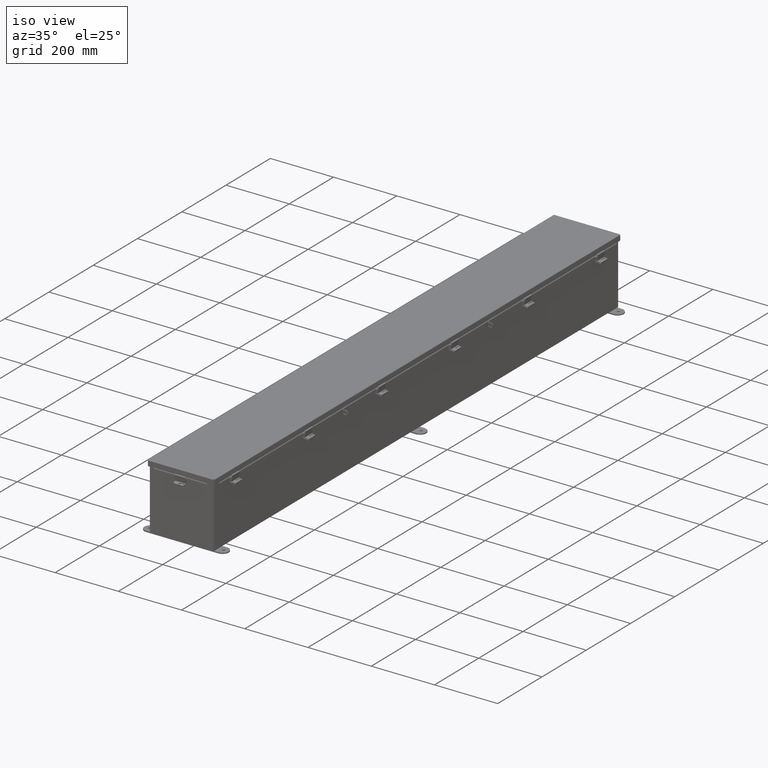
[diagram: clean part render]
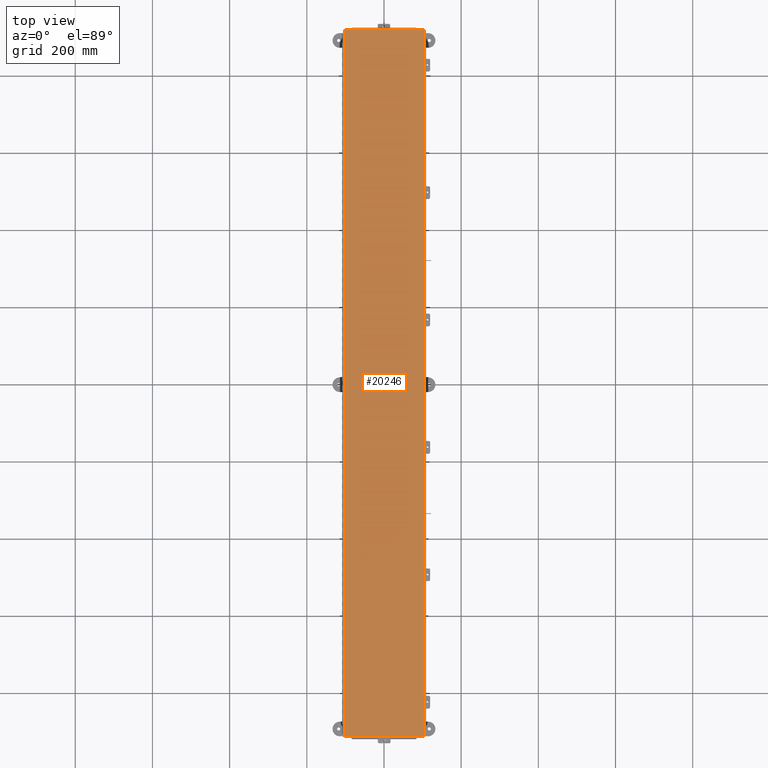
[diagram: tour spotlight — one face highlighted and labeled with its STEP entity id]
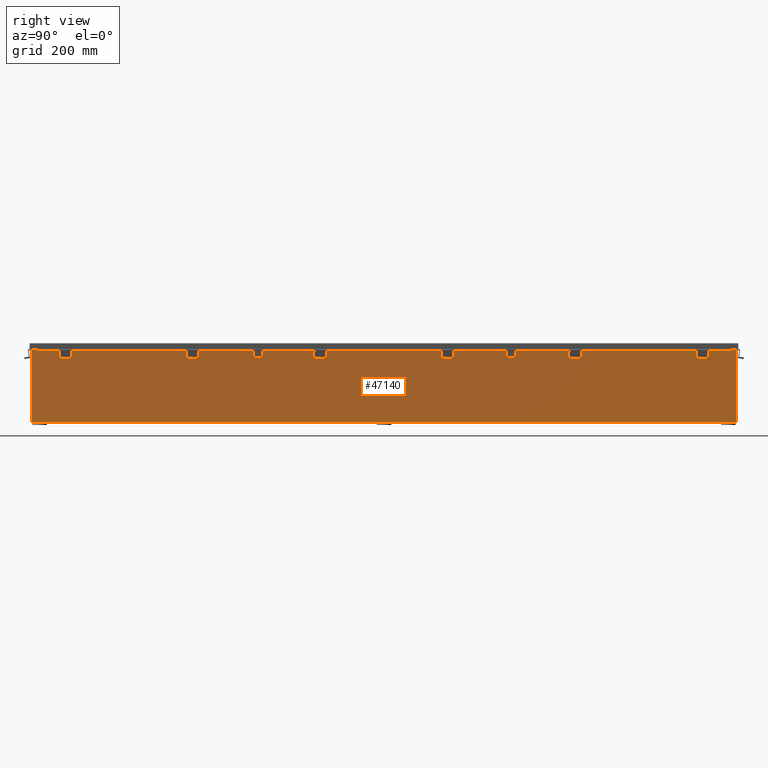
[diagram: tour spotlight — one face highlighted and labeled with its STEP entity id]
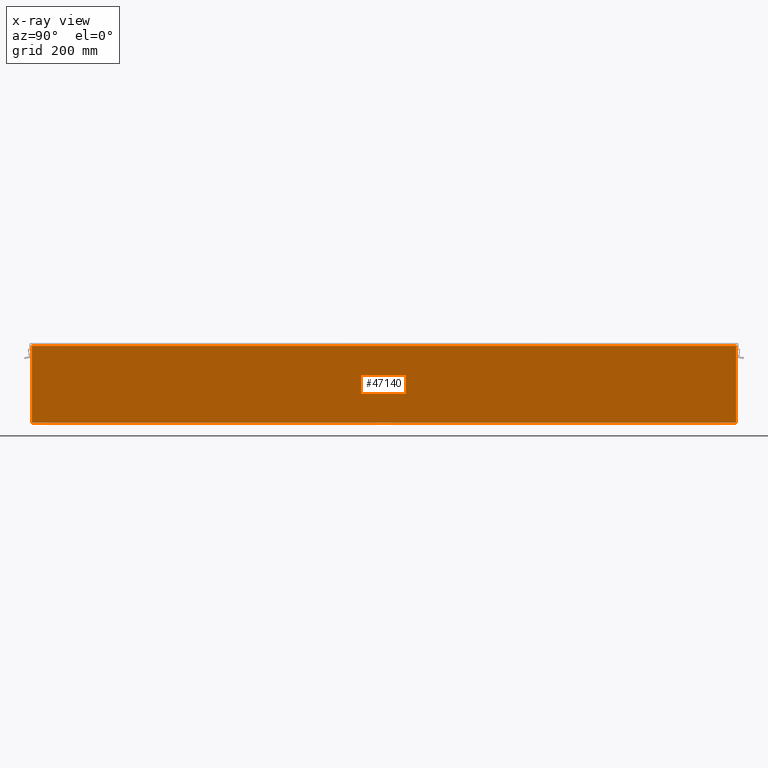
[diagram: x-ray of the same camera — body ghosted, this tour face saturated]
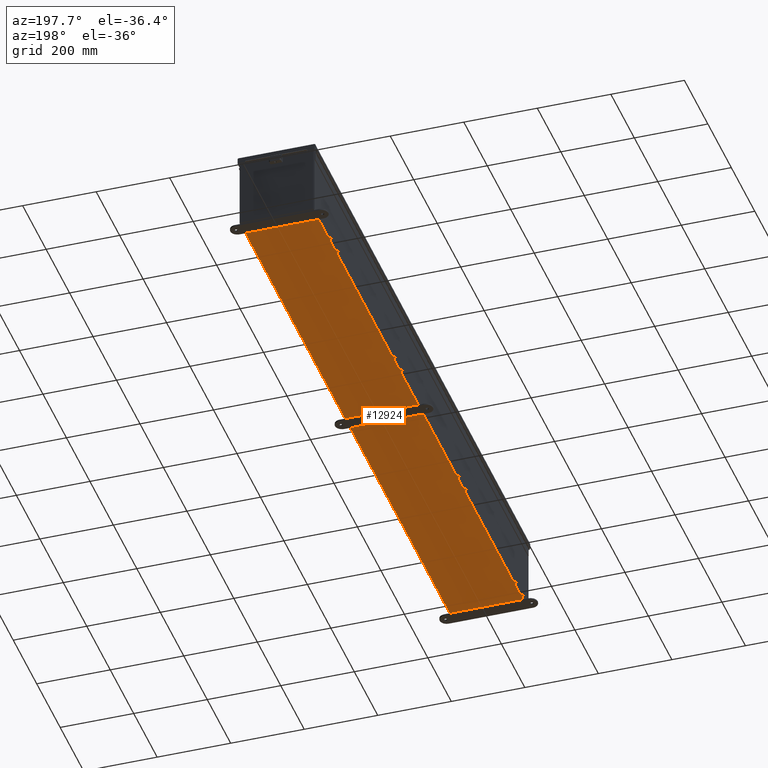
[diagram: tour spotlight — one face highlighted and labeled with its STEP entity id]
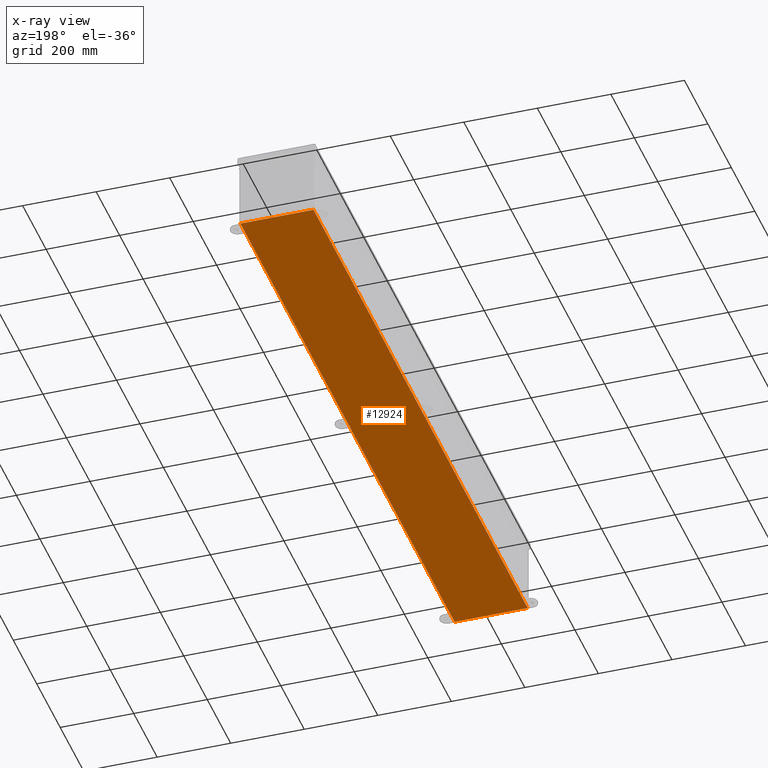
[diagram: x-ray of the same camera — body ghosted, this tour face saturated]
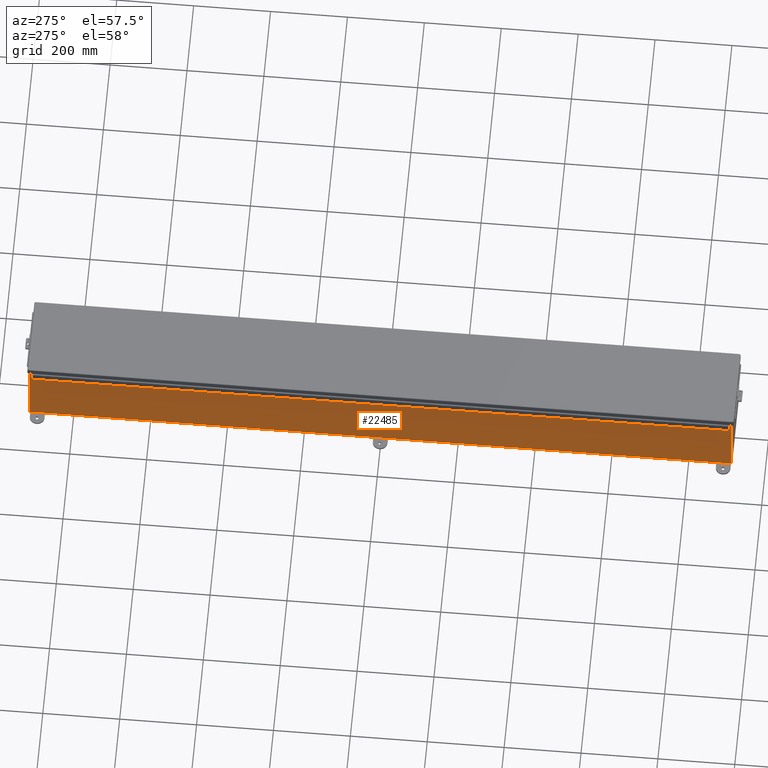
[diagram: tour spotlight — one face highlighted and labeled with its STEP entity id]
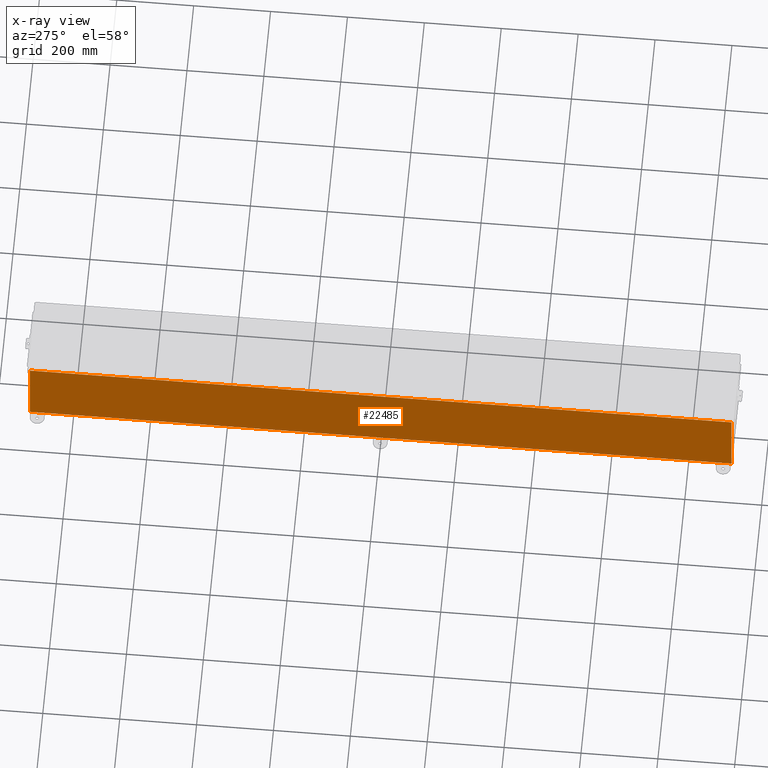
[diagram: x-ray of the same camera — body ghosted, this tour face saturated]
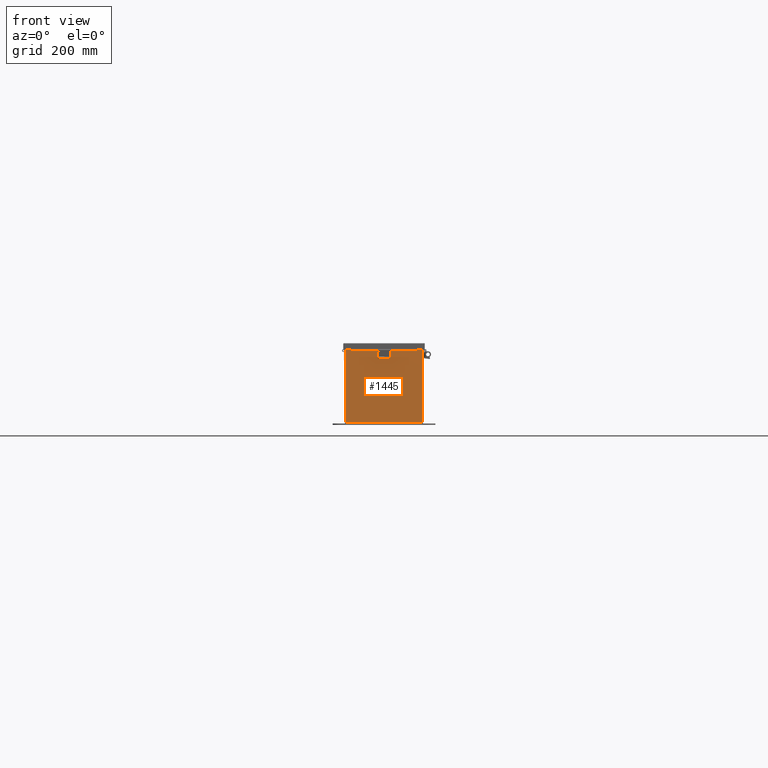
[diagram: tour spotlight — one face highlighted and labeled with its STEP entity id]
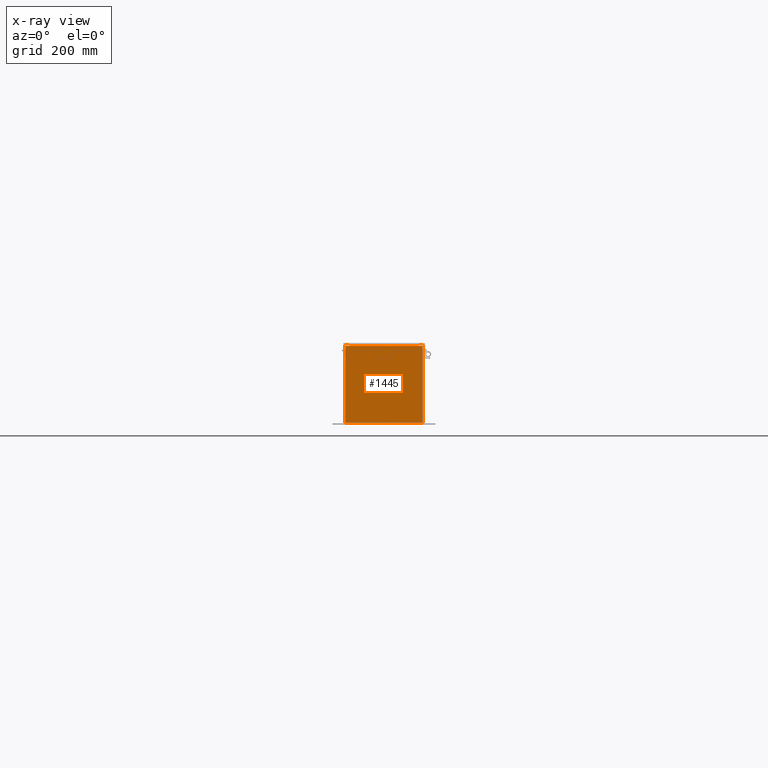
[diagram: x-ray of the same camera — body ghosted, this tour face saturated]
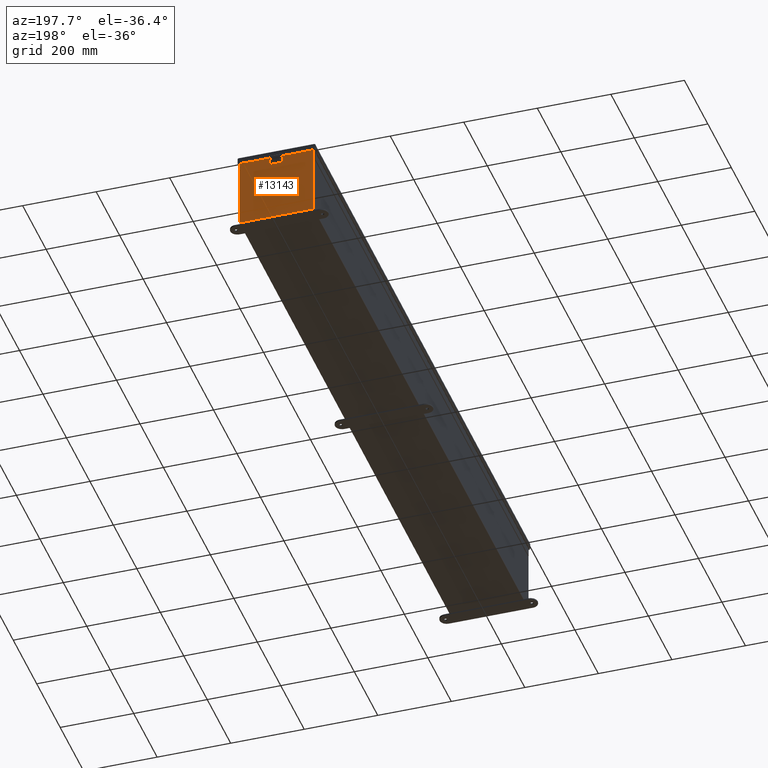
[diagram: tour spotlight — one face highlighted and labeled with its STEP entity id]
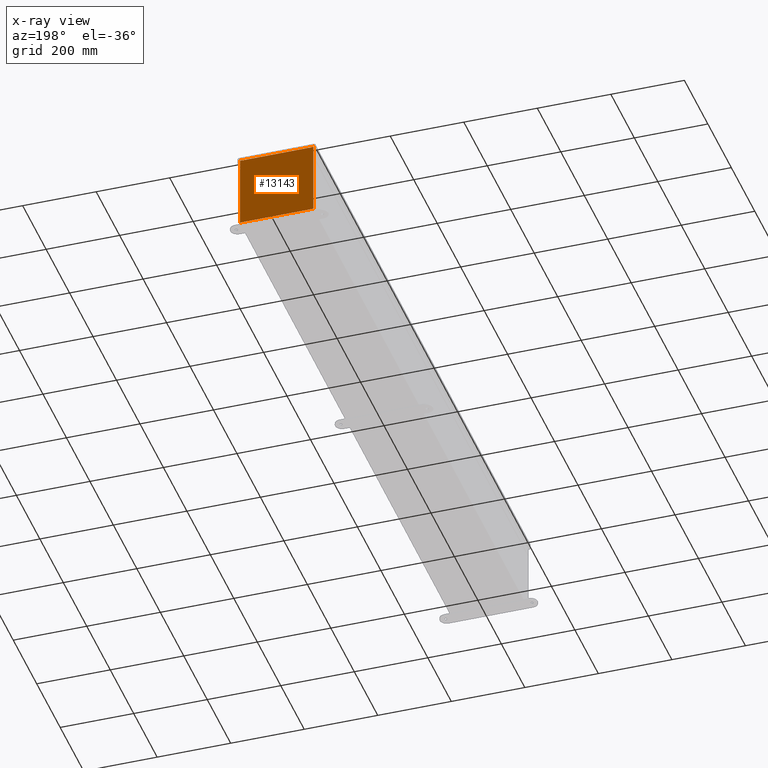
[diagram: x-ray of the same camera — body ghosted, this tour face saturated]
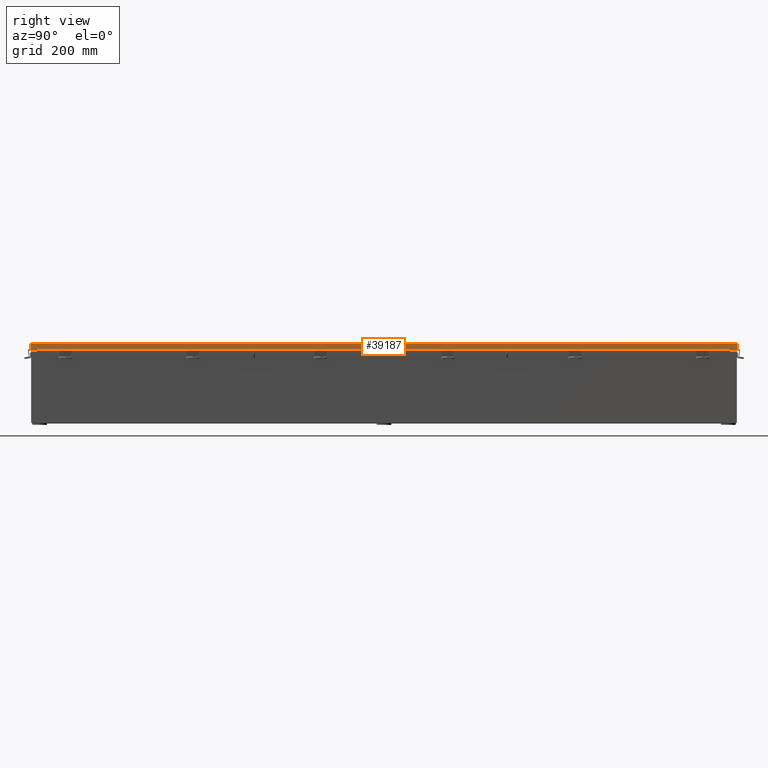
[diagram: tour spotlight — one face highlighted and labeled with its STEP entity id]
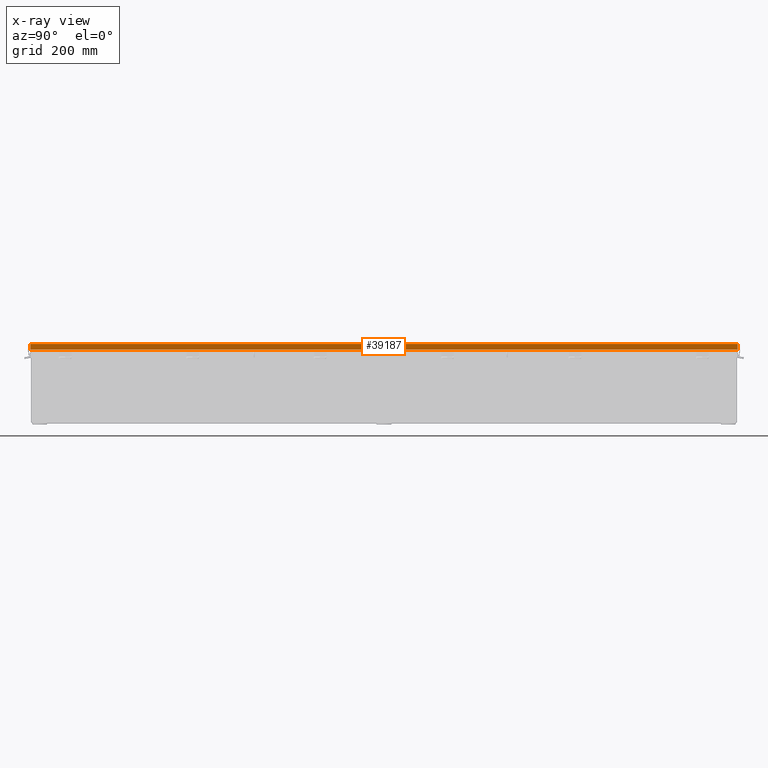
[diagram: x-ray of the same camera — body ghosted, this tour face saturated]
A machine part: a face-by-face anatomy tour. The part has 1943 B-rep faces; the first image is the clean iso view, then the 7 largest visible faces are spotlighted one at a time (largest first), each with its STEP entity span.

Face 1 — top view, entity #20246. In plain terms, the highlighted planar face has unit normal (0, -0, 1).
Definition (entity closure, byte-faithful):
#1983 = ORIENTED_EDGE ( 'NONE', *, *, #19284, .T. ) ;
#3235 = VECTOR ( 'NONE', #7517, 39.37007874015748100 ) ;
#3602 = CARTESIAN_POINT ( 'NONE',  ( 4.074478932188148100, -36.06855000000000900, -0.07470000000000015500 ) ) ;
#4507 = ORIENTED_EDGE ( 'NONE', *, *, #14492, .T. ) ;
#7517 = DIRECTION ( 'NONE',  ( -1.000000000000000000, -1.890815658827583500E-028, -0.0000000000000000000 ) ) ;
#7848 = CARTESIAN_POINT ( 'NONE',  ( -4.068550000000025900, 36.06854999999999500, -0.07470000000000015500 ) ) ;
#8375 = VECTOR ( 'NONE', #10351, 39.37007874015748100 ) ;
#10351 = DIRECTION ( 'NONE',  ( -1.890322620761828000E-028, -1.000000000000000000, 3.771741203087962700E-030 ) ) ;
#11039 = DIRECTION ( 'NONE',  ( 1.890322620761828000E-028, 1.000000000000000000, -3.771741203087962700E-030 ) ) ;
#11086 = ORIENTED_EDGE ( 'NONE', *, *, #16879, .T. ) ;
#11556 = VECTOR ( 'NONE', #45175, 39.37007874015748100 ) ;
#12917 = VERTEX_POINT ( 'NONE', #7848 ) ;
#14492 = EDGE_CURVE ( 'NONE', #12917, #19630, #21863, .T. ) ;
#16879 = EDGE_CURVE ( 'NONE', #19630, #33758, #18685, .T. ) ;
#18158 = DIRECTION ( 'NONE',  ( -7.271503942115330600E-058, 3.845696912952417800E-030, -1.000000000000000000 ) ) ;
#18685 = LINE ( 'NONE', #25841, #8375 ) ;
#19284 = EDGE_CURVE ( 'NONE', #33758, #41092, #45910, .T. ) ;
#19500 = LINE ( 'NONE', #49920, #35415 ) ;
#19630 = VERTEX_POINT ( 'NONE', #33739 ) ;
#19743 = EDGE_CURVE ( 'NONE', #41092, #12917, #19500, .T. ) ;
#20246 = ADVANCED_FACE ( 'NONE', ( #21219 ), #33712, .T. ) ;
#21219 = FACE_OUTER_BOUND ( 'NONE', #37318, .T. ) ;
#21863 = LINE ( 'NONE', #37357, #11556 ) ;
#22280 = CARTESIAN_POINT ( 'NONE',  ( -4.068550000000025900, -36.06855000000000900, -0.07470000000000125200 ) ) ;
#25722 = CARTESIAN_POINT ( 'NONE',  ( 4.068550000000014300, -36.06855000000000900, -0.07470000000000015500 ) ) ;
#25841 = CARTESIAN_POINT ( 'NONE',  ( 4.068550000000013400, 36.07447893218812900, -0.07470000000000015500 ) ) ;
#30137 = ORIENTED_EDGE ( 'NONE', *, *, #19743, .T. ) ;
#33712 = PLANE ( 'NONE',  #46477 ) ;
#33739 = CARTESIAN_POINT ( 'NONE',  ( 4.068550000000013400, 36.06854999999998800, -0.07470000000000015500 ) ) ;
#33758 = VERTEX_POINT ( 'NONE', #25722 ) ;
#35415 = VECTOR ( 'NONE', #11039, 39.37007874015748100 ) ;
#37318 = EDGE_LOOP ( 'NONE', ( #4507, #11086, #1983, #30137 ) ) ;
#37357 = CARTESIAN_POINT ( 'NONE',  ( -4.074478932188159600, 36.06854999999999500, -0.07470000000000015500 ) ) ;
#41092 = VERTEX_POINT ( 'NONE', #22280 ) ;
#41528 = CARTESIAN_POINT ( 'NONE',  ( 0.0000000000000000000, 0.0000000000000000000, -0.07470000000000015500 ) ) ;
#45175 = DIRECTION ( 'NONE',  ( 1.000000000000000000, 1.890815658827583500E-028, -0.0000000000000000000 ) ) ;
#45451 = DIRECTION ( 'NONE',  ( -1.000000000000000000, -1.890815658827583700E-028, 0.0000000000000000000 ) ) ;
#45910 = LINE ( 'NONE', #3602, #3235 ) ;
#46477 = AXIS2_PLACEMENT_3D ( 'NONE', #41528, #18158, #45451 ) ;
#49920 = CARTESIAN_POINT ( 'NONE',  ( -4.068550000000025900, -36.07447893218814300, -0.07470000000000125200 ) ) ;

Face 2 — right view, entity #47140. An x-ray twin of the same camera follows (body ghosted, this face saturated) — the face is partly hidden behind the body. In plain terms, the highlighted planar face has unit normal (-1, 0, 0).
Definition (entity closure, byte-faithful):
#473 = DIRECTION ( 'NONE',  ( -7.938364978030872700E-032, -1.000000000000000000, -2.281273637518070200E-017 ) ) ;
#1092 = VERTEX_POINT ( 'NONE', #19491 ) ;
#1816 = CARTESIAN_POINT ( 'NONE',  ( 4.000000000000027500, 35.92529999999997900, 7.837599999999999200 ) ) ;
#3075 = CARTESIAN_POINT ( 'NONE',  ( 4.000000000000001800, 0.0000000000000000000, -1.417999849211356600E-014 ) ) ;
#3430 = EDGE_CURVE ( 'NONE', #30369, #40277, #9976, .T. ) ;
#5814 = EDGE_CURVE ( 'NONE', #30369, #36901, #47027, .T. ) ;
#6041 = EDGE_CURVE ( 'NONE', #40277, #1092, #17681, .T. ) ;
#6814 = PLANE ( 'NONE',  #23424 ) ;
#6986 = DIRECTION ( 'NONE',  ( 3.479795166820705900E-015, 0.0000000000000000000, 1.000000000000000000 ) ) ;
#7461 = DIRECTION ( 'NONE',  ( -3.479795166820706300E-015, 0.0000000000000000000, -1.000000000000000000 ) ) ;
#9976 = LINE ( 'NONE', #41514, #29471 ) ;
#15657 = ORIENTED_EDGE ( 'NONE', *, *, #22106, .T. ) ;
#15885 = VECTOR ( 'NONE', #473, 39.37007874015748100 ) ;
#17681 = LINE ( 'NONE', #21304, #25607 ) ;
#18315 = DIRECTION ( 'NONE',  ( 3.479795166820706300E-015, -5.567672266913130300E-016, 1.000000000000000000 ) ) ;
#19491 = CARTESIAN_POINT ( 'NONE',  ( 4.000000000000029300, -35.92530000000000000, 7.837599999999999200 ) ) ;
#20265 = FACE_OUTER_BOUND ( 'NONE', #44298, .T. ) ;
#20519 = CARTESIAN_POINT ( 'NONE',  ( 4.000000000000001800, -35.92530000000000700, 0.01300000000000066200 ) ) ;
#21304 = CARTESIAN_POINT ( 'NONE',  ( 4.000000000000027500, 35.92529999999999300, 7.837599999999999200 ) ) ;
#22106 = EDGE_CURVE ( 'NONE', #1092, #36901, #38181, .T. ) ;
#23424 = AXIS2_PLACEMENT_3D ( 'NONE', #3075, #30297, #6986 ) ;
#25607 = VECTOR ( 'NONE', #33137, 39.37007874015748100 ) ;
#29001 = VECTOR ( 'NONE', #7461, 39.37007874015748100 ) ;
#29471 = VECTOR ( 'NONE', #18315, 39.37007874015748100 ) ;
#30297 = DIRECTION ( 'NONE',  ( -1.000000000000000000, 0.0000000000000000000, 3.479795166820705900E-015 ) ) ;
#30369 = VERTEX_POINT ( 'NONE', #40642 ) ;
#30776 = CARTESIAN_POINT ( 'NONE',  ( 4.000000000000001800, -35.92530000000000000, -1.417999849211356600E-014 ) ) ;
#33137 = DIRECTION ( 'NONE',  ( -0.0000000000000000000, -1.000000000000000000, -0.0000000000000000000 ) ) ;
#36901 = VERTEX_POINT ( 'NONE', #20519 ) ;
#38181 = LINE ( 'NONE', #30776, #29001 ) ;
#40277 = VERTEX_POINT ( 'NONE', #1816 ) ;
#40642 = CARTESIAN_POINT ( 'NONE',  ( 4.000000000000001800, 35.92530000000000000, 0.01300000000000148100 ) ) ;
#41078 = ORIENTED_EDGE ( 'NONE', *, *, #5814, .F. ) ;
#41514 = CARTESIAN_POINT ( 'NONE',  ( 4.000000000000001800, 35.92530000000000000, 5.822251036496960700E-015 ) ) ;
#44298 = EDGE_LOOP ( 'NONE', ( #45822, #15657, #41078, #48843 ) ) ;
#45822 = ORIENTED_EDGE ( 'NONE', *, *, #6041, .T. ) ;
#47027 = LINE ( 'NONE', #47145, #15885 ) ;
#47140 = ADVANCED_FACE ( 'NONE', ( #20265 ), #6814, .F. ) ;
#47145 = CARTESIAN_POINT ( 'NONE',  ( 4.000000000000001800, -35.92530000000000000, 0.01299999999999984300 ) ) ;
#48843 = ORIENTED_EDGE ( 'NONE', *, *, #3430, .T. ) ;

Face 3 — auxiliary view, entity #12924. An x-ray twin of the same camera follows (body ghosted, this face saturated) — the face is partly hidden behind the body. In plain terms, the highlighted planar face has unit normal (0, 0, -1).
Definition (entity closure, byte-faithful):
#197 = DIRECTION ( 'NONE',  ( -1.000000000000000000, 0.0000000000000000000, -0.0000000000000000000 ) ) ;
#2967 = VECTOR ( 'NONE', #22045, 39.37007874015748100 ) ;
#3238 = VERTEX_POINT ( 'NONE', #21034 ) ;
#3945 = CARTESIAN_POINT ( 'NONE',  ( 0.0000000000000000000, 0.0000000000000000000, -0.07470000000000000300 ) ) ;
#4677 = ORIENTED_EDGE ( 'NONE', *, *, #46789, .T. ) ;
#7417 = CARTESIAN_POINT ( 'NONE',  ( -3.999999999999997800, -35.92530000000000000, -0.07470000000000000300 ) ) ;
#7502 = CARTESIAN_POINT ( 'NONE',  ( 3.912300000000001900, -35.92530000000000700, -0.07470000000000000300 ) ) ;
#9097 = DIRECTION ( 'NONE',  ( -0.0000000000000000000, -1.000000000000000000, -0.0000000000000000000 ) ) ;
#10206 = VERTEX_POINT ( 'NONE', #7502 ) ;
#12924 = ADVANCED_FACE ( 'NONE', ( #43458 ), #19559, .T. ) ;
#13294 = LINE ( 'NONE', #41372, #2967 ) ;
#15116 = EDGE_CURVE ( 'NONE', #16101, #3238, #13294, .T. ) ;
#15295 = ORIENTED_EDGE ( 'NONE', *, *, #44606, .T. ) ;
#16101 = VERTEX_POINT ( 'NONE', #25063 ) ;
#17877 = LINE ( 'NONE', #23880, #36242 ) ;
#19099 = VERTEX_POINT ( 'NONE', #37686 ) ;
#19559 = PLANE ( 'NONE',  #19993 ) ;
#19769 = EDGE_LOOP ( 'NONE', ( #22138, #15295, #38061, #4677 ) ) ;
#19993 = AXIS2_PLACEMENT_3D ( 'NONE', #3945, #23487, #197 ) ;
#21034 = CARTESIAN_POINT ( 'NONE',  ( -3.912299999999997400, 35.92530000000000000, -0.07470000000000000300 ) ) ;
#21046 = LINE ( 'NONE', #7417, #22256 ) ;
#22045 = DIRECTION ( 'NONE',  ( -1.000000000000000000, -0.0000000000000000000, -0.0000000000000000000 ) ) ;
#22138 = ORIENTED_EDGE ( 'NONE', *, *, #15116, .F. ) ;
#22256 = VECTOR ( 'NONE', #42357, 39.37007874015748100 ) ;
#23487 = DIRECTION ( 'NONE',  ( 0.0000000000000000000, 0.0000000000000000000, -1.000000000000000000 ) ) ;
#23880 = CARTESIAN_POINT ( 'NONE',  ( -3.912299999999997400, -35.92530000000000700, -0.07470000000000076600 ) ) ;
#25063 = CARTESIAN_POINT ( 'NONE',  ( 3.912300000000001900, 35.92530000000000000, -0.07469999999999912800 ) ) ;
#32062 = VECTOR ( 'NONE', #9097, 39.37007874015748100 ) ;
#32423 = CARTESIAN_POINT ( 'NONE',  ( 3.912300000000001900, 35.92530000000000700, -0.07469999999999912800 ) ) ;
#36242 = VECTOR ( 'NONE', #47273, 39.37007874015748100 ) ;
#37686 = CARTESIAN_POINT ( 'NONE',  ( -3.912299999999997400, -35.92530000000000000, -0.07470000000000076600 ) ) ;
#38061 = ORIENTED_EDGE ( 'NONE', *, *, #44375, .F. ) ;
#41372 = CARTESIAN_POINT ( 'NONE',  ( -3.999999999999997800, 35.92530000000000000, -0.07470000000000000300 ) ) ;
#42357 = DIRECTION ( 'NONE',  ( 1.000000000000000000, 0.0000000000000000000, 0.0000000000000000000 ) ) ;
#43458 = FACE_OUTER_BOUND ( 'NONE', #19769, .T. ) ;
#43667 = LINE ( 'NONE', #32423, #32062 ) ;
#44375 = EDGE_CURVE ( 'NONE', #19099, #10206, #21046, .T. ) ;
#44606 = EDGE_CURVE ( 'NONE', #16101, #10206, #43667, .T. ) ;
#46789 = EDGE_CURVE ( 'NONE', #19099, #3238, #17877, .T. ) ;
#47273 = DIRECTION ( 'NONE',  ( -0.0000000000000000000, 1.000000000000000000, -0.0000000000000000000 ) ) ;

Face 4 — auxiliary view, entity #22485. An x-ray twin of the same camera follows (body ghosted, this face saturated) — the face is partly hidden behind the body. In plain terms, the highlighted planar face has unit normal (1, 0, 0).
Definition (entity closure, byte-faithful):
#311 = ORIENTED_EDGE ( 'NONE', *, *, #22293, .T. ) ;
#4490 = AXIS2_PLACEMENT_3D ( 'NONE', #6050, #33484, #10125 ) ;
#5687 = CARTESIAN_POINT ( 'NONE',  ( -3.999999999999997800, -35.92530000000000000, 5.822251036496960700E-015 ) ) ;
#6050 = CARTESIAN_POINT ( 'NONE',  ( -3.999999999999997800, 0.0000000000000000000, -1.417999849211356600E-014 ) ) ;
#6210 = PLANE ( 'NONE',  #4490 ) ;
#6435 = DIRECTION ( 'NONE',  ( -7.938364978030872700E-032, 1.000000000000000000, 2.281273637518070200E-017 ) ) ;
#6703 = EDGE_LOOP ( 'NONE', ( #13411, #311, #47161, #50314 ) ) ;
#10125 = DIRECTION ( 'NONE',  ( 3.479795166820705900E-015, 0.0000000000000000000, -1.000000000000000000 ) ) ;
#10697 = VECTOR ( 'NONE', #29456, 39.37007874015748100 ) ;
#11831 = LINE ( 'NONE', #5687, #49642 ) ;
#12750 = EDGE_CURVE ( 'NONE', #28835, #34479, #21016, .T. ) ;
#13411 = ORIENTED_EDGE ( 'NONE', *, *, #12750, .T. ) ;
#15105 = EDGE_CURVE ( 'NONE', #19645, #41710, #44404, .T. ) ;
#19376 = CARTESIAN_POINT ( 'NONE',  ( -3.999999999999997800, 35.92530000000000700, 0.01299999999999902300 ) ) ;
#19645 = VERTEX_POINT ( 'NONE', #41556 ) ;
#20178 = CARTESIAN_POINT ( 'NONE',  ( -3.999999999999997800, 35.92530000000000000, -1.417999849211356600E-014 ) ) ;
#21016 = LINE ( 'NONE', #21578, #10697 ) ;
#21578 = CARTESIAN_POINT ( 'NONE',  ( -4.000000000000026600, -35.92529999999999300, 7.837599999999999200 ) ) ;
#22293 = EDGE_CURVE ( 'NONE', #34479, #41710, #29585, .T. ) ;
#22485 = ADVANCED_FACE ( 'NONE', ( #32635 ), #6210, .F. ) ;
#28835 = VERTEX_POINT ( 'NONE', #42489 ) ;
#29456 = DIRECTION ( 'NONE',  ( 0.0000000000000000000, 1.000000000000000000, 0.0000000000000000000 ) ) ;
#29585 = LINE ( 'NONE', #20178, #41203 ) ;
#29757 = CARTESIAN_POINT ( 'NONE',  ( -3.999999999999997800, 35.92530000000000000, 0.01299999999999984300 ) ) ;
#30403 = EDGE_CURVE ( 'NONE', #19645, #28835, #11831, .T. ) ;
#32635 = FACE_OUTER_BOUND ( 'NONE', #6703, .T. ) ;
#33484 = DIRECTION ( 'NONE',  ( 1.000000000000000000, 0.0000000000000000000, 3.479795166820705900E-015 ) ) ;
#34479 = VERTEX_POINT ( 'NONE', #42219 ) ;
#35325 = VECTOR ( 'NONE', #6435, 39.37007874015748100 ) ;
#40808 = DIRECTION ( 'NONE',  ( -3.479795166820706300E-015, 5.567672266913130300E-016, 1.000000000000000000 ) ) ;
#41203 = VECTOR ( 'NONE', #47510, 39.37007874015748100 ) ;
#41556 = CARTESIAN_POINT ( 'NONE',  ( -3.999999999999997800, -35.92530000000000000, 0.01299999999999820400 ) ) ;
#41710 = VERTEX_POINT ( 'NONE', #19376 ) ;
#42219 = CARTESIAN_POINT ( 'NONE',  ( -4.000000000000024900, 35.92530000000000000, 7.837599999999999200 ) ) ;
#42489 = CARTESIAN_POINT ( 'NONE',  ( -4.000000000000026600, -35.92529999999997900, 7.837599999999999200 ) ) ;
#44404 = LINE ( 'NONE', #29757, #35325 ) ;
#47161 = ORIENTED_EDGE ( 'NONE', *, *, #15105, .F. ) ;
#47510 = DIRECTION ( 'NONE',  ( 3.479795166820706300E-015, 0.0000000000000000000, -1.000000000000000000 ) ) ;
#49642 = VECTOR ( 'NONE', #40808, 39.37007874015748100 ) ;
#50314 = ORIENTED_EDGE ( 'NONE', *, *, #30403, .T. ) ;

Face 5 — front view, entity #1445. An x-ray twin of the same camera follows (body ghosted, this face saturated) — the face is partly hidden behind the body. In plain terms, the highlighted planar face has unit normal (-0, 1, -0).
Definition (entity closure, byte-faithful):
#703 = CARTESIAN_POINT ( 'NONE',  ( 3.619650000000004000, -3.933861110876539400E-014, 3.874949999999999700 ) ) ;
#790 = VERTEX_POINT ( 'NONE', #2182 ) ;
#1061 = LINE ( 'NONE', #38738, #38851 ) ;
#1445 = ADVANCED_FACE ( 'NONE', ( #5915 ), #10101, .F. ) ;
#1645 = EDGE_CURVE ( 'NONE', #42164, #27108, #1061, .T. ) ;
#1722 = EDGE_CURVE ( 'NONE', #45575, #17467, #4092, .T. ) ;
#2088 = VECTOR ( 'NONE', #34489, 39.37007874015748100 ) ;
#2182 = CARTESIAN_POINT ( 'NONE',  ( 3.925299999999999100, 0.0000000000000000000, -3.925299999999994700 ) ) ;
#2458 = CARTESIAN_POINT ( 'NONE',  ( -3.619650000000000500, 0.0000000000000000000, 0.0000000000000000000 ) ) ;
#2709 = ORIENTED_EDGE ( 'NONE', *, *, #42856, .F. ) ;
#2768 = EDGE_CURVE ( 'NONE', #8588, #34812, #18568, .T. ) ;
#3268 = CARTESIAN_POINT ( 'NONE',  ( 3.619650000000000500, -3.933861110876539400E-014, 3.925300000000000900 ) ) ;
#4092 = CIRCLE ( 'NONE', #26967, 0.01867500000000003900 ) ;
#4262 = CARTESIAN_POINT ( 'NONE',  ( -3.582300000000000000, -3.496765431890256900E-014, 3.912299999999999700 ) ) ;
#4387 = VECTOR ( 'NONE', #38094, 39.37007874015748100 ) ;
#5239 = CARTESIAN_POINT ( 'NONE',  ( -3.925300000000000500, -3.933861110876539400E-014, 3.925300000000000900 ) ) ;
#5915 = FACE_OUTER_BOUND ( 'NONE', #31831, .T. ) ;
#5983 = LINE ( 'NONE', #2458, #25465 ) ;
#8234 = CARTESIAN_POINT ( 'NONE',  ( 3.600975000000004000, -3.933861110876539400E-014, 3.874949999999999700 ) ) ;
#8588 = VERTEX_POINT ( 'NONE', #20380 ) ;
#9412 = LINE ( 'NONE', #46627, #49656 ) ;
#10101 = PLANE ( 'NONE',  #35851 ) ;
#10257 = DIRECTION ( 'NONE',  ( 0.0000000000000000000, 0.0000000000000000000, -1.000000000000000000 ) ) ;
#10282 = DIRECTION ( 'NONE',  ( 0.0000000000000000000, 0.0000000000000000000, 1.000000000000000000 ) ) ;
#10804 = CARTESIAN_POINT ( 'NONE',  ( 3.582299999999999200, 0.0000000000000000000, 4.917326388595674200E-015 ) ) ;
#11083 = CARTESIAN_POINT ( 'NONE',  ( -3.925300000000000500, -3.933861110876539400E-014, 3.925300000000000900 ) ) ;
#11455 = CARTESIAN_POINT ( 'NONE',  ( -3.600974999999995200, -3.933861110876539400E-014, 3.874950000000000600 ) ) ;
#12121 = DIRECTION ( 'NONE',  ( 0.0000000000000000000, 0.0000000000000000000, -1.000000000000000000 ) ) ;
#13233 = DIRECTION ( 'NONE',  ( 1.000000000000000000, 5.526334185345597900E-031, 0.0000000000000000000 ) ) ;
#13479 = LINE ( 'NONE', #10804, #4387 ) ;
#13648 = ORIENTED_EDGE ( 'NONE', *, *, #40490, .F. ) ;
#14287 = ORIENTED_EDGE ( 'NONE', *, *, #38972, .T. ) ;
#14786 = VERTEX_POINT ( 'NONE', #15814 ) ;
#15355 = DIRECTION ( 'NONE',  ( 0.0000000000000000000, 0.0000000000000000000, -1.000000000000000000 ) ) ;
#15488 = ORIENTED_EDGE ( 'NONE', *, *, #20844, .F. ) ;
#15814 = CARTESIAN_POINT ( 'NONE',  ( -3.619649999999995100, -3.933861110876539400E-014, 3.874950000000000600 ) ) ;
#15895 = CARTESIAN_POINT ( 'NONE',  ( 3.582299999999999200, -3.933861110876539400E-014, 3.912300000000000600 ) ) ;
#16131 = VECTOR ( 'NONE', #25360, 39.37007874015748100 ) ;
#16161 = CIRCLE ( 'NONE', #25542, 0.01867500000000003900 ) ;
#16806 = VECTOR ( 'NONE', #13233, 39.37007874015748100 ) ;
#17467 = VERTEX_POINT ( 'NONE', #49971 ) ;
#18568 = LINE ( 'NONE', #21392, #16131 ) ;
#19632 = VECTOR ( 'NONE', #27574, 39.37007874015748100 ) ;
#20261 = ORIENTED_EDGE ( 'NONE', *, *, #1722, .F. ) ;
#20294 = ORIENTED_EDGE ( 'NONE', *, *, #47045, .T. ) ;
#20380 = CARTESIAN_POINT ( 'NONE',  ( -3.925300000000000500, 0.0000000000000000000, -3.925299999999999600 ) ) ;
#20844 = EDGE_CURVE ( 'NONE', #14786, #35899, #5983, .T. ) ;
#21392 = CARTESIAN_POINT ( 'NONE',  ( -3.925300000000000500, -3.933861110876539400E-014, 3.925300000000000900 ) ) ;
#21937 = EDGE_CURVE ( 'NONE', #25678, #37326, #47970, .T. ) ;
#22775 = VERTEX_POINT ( 'NONE', #15895 ) ;
#23214 = EDGE_CURVE ( 'NONE', #34812, #35899, #31950, .T. ) ;
#23219 = DIRECTION ( 'NONE',  ( 0.0000000000000000000, 0.0000000000000000000, -1.000000000000000000 ) ) ;
#23885 = CARTESIAN_POINT ( 'NONE',  ( -3.582299999999995200, -3.933861110876539400E-014, 3.874950000000000600 ) ) ;
#23959 = VECTOR ( 'NONE', #41410, 39.37007874015748100 ) ;
#25218 = ORIENTED_EDGE ( 'NONE', *, *, #23214, .T. ) ;
#25360 = DIRECTION ( 'NONE',  ( 0.0000000000000000000, 0.0000000000000000000, 1.000000000000000000 ) ) ;
#25465 = VECTOR ( 'NONE', #10282, 39.37007874015748100 ) ;
#25542 = AXIS2_PLACEMENT_3D ( 'NONE', #11455, #38762, #15355 ) ;
#25678 = VERTEX_POINT ( 'NONE', #3268 ) ;
#26967 = AXIS2_PLACEMENT_3D ( 'NONE', #8234, #35519, #12121 ) ;
#27108 = VERTEX_POINT ( 'NONE', #23885 ) ;
#27523 = ORIENTED_EDGE ( 'NONE', *, *, #47353, .T. ) ;
#27574 = DIRECTION ( 'NONE',  ( 1.000000000000000000, 5.526334185345597900E-031, -0.0000000000000000000 ) ) ;
#28678 = CARTESIAN_POINT ( 'NONE',  ( 3.619649999999915200, 0.0000000000000000000, -7.375989582893510800E-014 ) ) ;
#28849 = EDGE_CURVE ( 'NONE', #27108, #14786, #16161, .T. ) ;
#31302 = CARTESIAN_POINT ( 'NONE',  ( -3.582300000000000000, -3.496765431890256900E-014, 3.912299999999999700 ) ) ;
#31831 = EDGE_LOOP ( 'NONE', ( #15488, #32708, #47749, #27523, #13648, #20261, #2709, #38164, #14287, #20294, #41908, #25218 ) ) ;
#31950 = LINE ( 'NONE', #11083, #2088 ) ;
#32047 = CARTESIAN_POINT ( 'NONE',  ( -3.619650000000000500, -3.933861110876539400E-014, 3.925299999999999600 ) ) ;
#32708 = ORIENTED_EDGE ( 'NONE', *, *, #28849, .F. ) ;
#33630 = DIRECTION ( 'NONE',  ( -5.526334185345597900E-031, -1.000000000000000000, -0.0000000000000000000 ) ) ;
#34370 = LINE ( 'NONE', #41082, #23959 ) ;
#34489 = DIRECTION ( 'NONE',  ( 1.000000000000000000, 5.526334185345597900E-031, 0.0000000000000000000 ) ) ;
#34812 = VERTEX_POINT ( 'NONE', #5239 ) ;
#34845 = DIRECTION ( 'NONE',  ( 0.0000000000000000000, 0.0000000000000000000, -1.000000000000000000 ) ) ;
#35519 = DIRECTION ( 'NONE',  ( 5.526334185345597900E-031, 1.000000000000000000, -0.0000000000000000000 ) ) ;
#35851 = AXIS2_PLACEMENT_3D ( 'NONE', #49144, #33630, #10257 ) ;
#35899 = VERTEX_POINT ( 'NONE', #32047 ) ;
#36622 = CARTESIAN_POINT ( 'NONE',  ( -3.925300000000000500, -3.933861110876539400E-014, 3.925300000000000900 ) ) ;
#37058 = LINE ( 'NONE', #28678, #46185 ) ;
#37326 = VERTEX_POINT ( 'NONE', #50212 ) ;
#38094 = DIRECTION ( 'NONE',  ( 0.0000000000000000000, 0.0000000000000000000, 1.000000000000000000 ) ) ;
#38164 = ORIENTED_EDGE ( 'NONE', *, *, #21937, .T. ) ;
#38738 = CARTESIAN_POINT ( 'NONE',  ( -3.582300000000000000, 0.0000000000000000000, 0.0000000000000000000 ) ) ;
#38762 = DIRECTION ( 'NONE',  ( 5.526334185345597900E-031, 1.000000000000000000, -0.0000000000000000000 ) ) ;
#38851 = VECTOR ( 'NONE', #34845, 39.37007874015748100 ) ;
#38972 = EDGE_CURVE ( 'NONE', #37326, #790, #9412, .T. ) ;
#40427 = LINE ( 'NONE', #4262, #19632 ) ;
#40483 = DIRECTION ( 'NONE',  ( -2.170286390199978800E-014, -8.874685183736382800E-031, -1.000000000000000000 ) ) ;
#40490 = EDGE_CURVE ( 'NONE', #17467, #22775, #13479, .T. ) ;
#41082 = CARTESIAN_POINT ( 'NONE',  ( -3.925300000000000500, 0.0000000000000000000, -3.925299999999999600 ) ) ;
#41410 = DIRECTION ( 'NONE',  ( -1.000000000000000000, -5.526334185345597900E-031, 0.0000000000000000000 ) ) ;
#41908 = ORIENTED_EDGE ( 'NONE', *, *, #2768, .T. ) ;
#42164 = VERTEX_POINT ( 'NONE', #31302 ) ;
#42856 = EDGE_CURVE ( 'NONE', #25678, #45575, #37058, .T. ) ;
#45575 = VERTEX_POINT ( 'NONE', #703 ) ;
#46185 = VECTOR ( 'NONE', #40483, 39.37007874015748100 ) ;
#46627 = CARTESIAN_POINT ( 'NONE',  ( 3.925299999999999100, -3.933861110876539400E-014, 3.925299999999999600 ) ) ;
#47045 = EDGE_CURVE ( 'NONE', #790, #8588, #34370, .T. ) ;
#47353 = EDGE_CURVE ( 'NONE', #42164, #22775, #40427, .T. ) ;
#47749 = ORIENTED_EDGE ( 'NONE', *, *, #1645, .F. ) ;
#47970 = LINE ( 'NONE', #36622, #16806 ) ;
#49144 = CARTESIAN_POINT ( 'NONE',  ( 0.0000000000000000000, 0.0000000000000000000, 0.0000000000000000000 ) ) ;
#49656 = VECTOR ( 'NONE', #23219, 39.37007874015748100 ) ;
#49971 = CARTESIAN_POINT ( 'NONE',  ( 3.582300000000004000, -3.933861110876539400E-014, 3.874949999999999700 ) ) ;
#50212 = CARTESIAN_POINT ( 'NONE',  ( 3.925299999999999100, -3.933861110876539400E-014, 3.925299999999999600 ) ) ;

Face 6 — auxiliary view, entity #13143. An x-ray twin of the same camera follows (body ghosted, this face saturated) — the face is partly hidden behind the body. In plain terms, the highlighted planar face has unit normal (0, -1, 0).
Definition (entity closure, byte-faithful):
#580 = ORIENTED_EDGE ( 'NONE', *, *, #49794, .T. ) ;
#644 = VECTOR ( 'NONE', #8606, 39.37007874015748100 ) ;
#1526 = DIRECTION ( 'NONE',  ( 0.0000000000000000000, -0.0000000000000000000, -1.000000000000000000 ) ) ;
#1541 = VERTEX_POINT ( 'NONE', #6865 ) ;
#1591 = VERTEX_POINT ( 'NONE', #49984 ) ;
#2560 = FACE_OUTER_BOUND ( 'NONE', #13583, .T. ) ;
#3434 = DIRECTION ( 'NONE',  ( 1.000000000000000000, 0.0000000000000000000, 0.0000000000000000000 ) ) ;
#3700 = VECTOR ( 'NONE', #49857, 39.37007874015748100 ) ;
#4349 = VECTOR ( 'NONE', #24621, 39.37007874015748100 ) ;
#4580 = ORIENTED_EDGE ( 'NONE', *, *, #49558, .T. ) ;
#4689 = CARTESIAN_POINT ( 'NONE',  ( -3.925300000000000500, 0.0000000000000000000, -3.925300000000000500 ) ) ;
#4696 = AXIS2_PLACEMENT_3D ( 'NONE', #44119, #20713, #48048 ) ;
#5119 = ORIENTED_EDGE ( 'NONE', *, *, #17650, .T. ) ;
#5243 = LINE ( 'NONE', #47248, #24721 ) ;
#5989 = AXIS2_PLACEMENT_3D ( 'NONE', #44272, #24824, #1526 ) ;
#6047 = VECTOR ( 'NONE', #20597, 39.37007874015748100 ) ;
#6865 = CARTESIAN_POINT ( 'NONE',  ( -3.619650000000000500, 0.0000000000000000000, 3.874949999999999700 ) ) ;
#7404 = CARTESIAN_POINT ( 'NONE',  ( 3.925299999999999100, 0.0000000000000000000, -3.925300000000000500 ) ) ;
#7498 = VECTOR ( 'NONE', #22783, 39.37007874015748100 ) ;
#7648 = CARTESIAN_POINT ( 'NONE',  ( -3.619650000000000500, 0.0000000000000000000, 3.925299999999999600 ) ) ;
#8606 = DIRECTION ( 'NONE',  ( -1.000000000000000000, -0.0000000000000000000, -0.0000000000000000000 ) ) ;
#8875 = VERTEX_POINT ( 'NONE', #37927 ) ;
#9834 = EDGE_CURVE ( 'NONE', #1541, #42096, #37165, .T. ) ;
#10891 = VERTEX_POINT ( 'NONE', #41364 ) ;
#11141 = LINE ( 'NONE', #30636, #7498 ) ;
#12132 = VERTEX_POINT ( 'NONE', #44524 ) ;
#12186 = CIRCLE ( 'NONE', #45091, 0.01867500000000003900 ) ;
#12275 = DIRECTION ( 'NONE',  ( 1.000000000000000000, 0.0000000000000000000, 0.0000000000000000000 ) ) ;
#12693 = EDGE_CURVE ( 'NONE', #1591, #47553, #44246, .T. ) ;
#13143 = ADVANCED_FACE ( 'NONE', ( #2560 ), #32510, .F. ) ;
#13325 = ORIENTED_EDGE ( 'NONE', *, *, #13776, .T. ) ;
#13583 = EDGE_LOOP ( 'NONE', ( #20619, #44001, #35238, #5119, #33588, #28008, #41582, #43291, #580, #4580, #47689, #13325 ) ) ;
#13776 = EDGE_CURVE ( 'NONE', #48652, #42096, #35465, .T. ) ;
#14010 = LINE ( 'NONE', #45934, #3700 ) ;
#14330 = VECTOR ( 'NONE', #40905, 39.37007874015748100 ) ;
#16239 = DIRECTION ( 'NONE',  ( -0.0000000000000000000, 1.000000000000000000, -0.0000000000000000000 ) ) ;
#17516 = CARTESIAN_POINT ( 'NONE',  ( -3.582300000000000000, 0.0000000000000000000, 0.0000000000000000000 ) ) ;
#17650 = EDGE_CURVE ( 'NONE', #1591, #8875, #5243, .T. ) ;
#18225 = VECTOR ( 'NONE', #25565, 39.37007874015748100 ) ;
#19459 = LINE ( 'NONE', #41113, #18225 ) ;
#20040 = EDGE_CURVE ( 'NONE', #47553, #1541, #42664, .T. ) ;
#20597 = DIRECTION ( 'NONE',  ( 0.0000000000000000000, 0.0000000000000000000, 1.000000000000000000 ) ) ;
#20619 = ORIENTED_EDGE ( 'NONE', *, *, #9834, .F. ) ;
#20713 = DIRECTION ( 'NONE',  ( -0.0000000000000000000, 1.000000000000000000, -0.0000000000000000000 ) ) ;
#21263 = LINE ( 'NONE', #4689, #644 ) ;
#21559 = CARTESIAN_POINT ( 'NONE',  ( 3.619649999999999100, 0.0000000000000000000, 3.874949999999999700 ) ) ;
#22783 = DIRECTION ( 'NONE',  ( 0.0000000000000000000, 0.0000000000000000000, 1.000000000000000000 ) ) ;
#23648 = VERTEX_POINT ( 'NONE', #21559 ) ;
#24416 = VERTEX_POINT ( 'NONE', #7404 ) ;
#24621 = DIRECTION ( 'NONE',  ( 1.000000000000000000, 0.0000000000000000000, 0.0000000000000000000 ) ) ;
#24721 = VECTOR ( 'NONE', #12275, 39.37007874015748100 ) ;
#24824 = DIRECTION ( 'NONE',  ( 0.0000000000000000000, -1.000000000000000000, 0.0000000000000000000 ) ) ;
#25364 = CARTESIAN_POINT ( 'NONE',  ( 3.582299999999999200, 0.0000000000000000000, 3.874949999999999700 ) ) ;
#25565 = DIRECTION ( 'NONE',  ( 0.0000000000000000000, 0.0000000000000000000, -1.000000000000000000 ) ) ;
#26739 = CARTESIAN_POINT ( 'NONE',  ( -3.925300000000000500, 0.0000000000000000000, 3.925299999999999600 ) ) ;
#28008 = ORIENTED_EDGE ( 'NONE', *, *, #49545, .F. ) ;
#29710 = CARTESIAN_POINT ( 'NONE',  ( -3.582300000000000000, 0.0000000000000000000, 3.874949999999999700 ) ) ;
#30636 = CARTESIAN_POINT ( 'NONE',  ( 3.582299999999999200, 0.0000000000000000000, 0.0000000000000000000 ) ) ;
#31007 = VECTOR ( 'NONE', #48389, 39.37007874015748100 ) ;
#32510 = PLANE ( 'NONE',  #5989 ) ;
#33576 = VERTEX_POINT ( 'NONE', #42505 ) ;
#33588 = ORIENTED_EDGE ( 'NONE', *, *, #47181, .F. ) ;
#34263 = EDGE_CURVE ( 'NONE', #10891, #48652, #41393, .T. ) ;
#35238 = ORIENTED_EDGE ( 'NONE', *, *, #12693, .F. ) ;
#35465 = LINE ( 'NONE', #44043, #4349 ) ;
#37165 = LINE ( 'NONE', #43993, #6047 ) ;
#37927 = CARTESIAN_POINT ( 'NONE',  ( 3.582299999999999200, 0.0000000000000000000, 3.912299999999998800 ) ) ;
#39108 = LINE ( 'NONE', #26739, #49446 ) ;
#39642 = CARTESIAN_POINT ( 'NONE',  ( 3.600974999999999100, 0.0000000000000000000, 3.874949999999999700 ) ) ;
#40877 = CARTESIAN_POINT ( 'NONE',  ( -3.925300000000000500, 0.0000000000000000000, 3.925299999999999600 ) ) ;
#40905 = DIRECTION ( 'NONE',  ( 0.0000000000000000000, 0.0000000000000000000, -1.000000000000000000 ) ) ;
#41113 = CARTESIAN_POINT ( 'NONE',  ( 3.925299999999999100, 0.0000000000000000000, 3.925299999999999600 ) ) ;
#41364 = CARTESIAN_POINT ( 'NONE',  ( -3.925300000000000500, 0.0000000000000000000, -3.925300000000000500 ) ) ;
#41393 = LINE ( 'NONE', #44619, #31007 ) ;
#41582 = ORIENTED_EDGE ( 'NONE', *, *, #49323, .F. ) ;
#42096 = VERTEX_POINT ( 'NONE', #7648 ) ;
#42505 = CARTESIAN_POINT ( 'NONE',  ( 3.925299999999999100, 0.0000000000000000000, 3.925299999999999600 ) ) ;
#42664 = CIRCLE ( 'NONE', #4696, 0.01867500000000003900 ) ;
#43291 = ORIENTED_EDGE ( 'NONE', *, *, #48286, .T. ) ;
#43531 = DIRECTION ( 'NONE',  ( 0.0000000000000000000, 0.0000000000000000000, -1.000000000000000000 ) ) ;
#43993 = CARTESIAN_POINT ( 'NONE',  ( -3.619650000000000500, 0.0000000000000000000, 0.0000000000000000000 ) ) ;
#44001 = ORIENTED_EDGE ( 'NONE', *, *, #20040, .F. ) ;
#44043 = CARTESIAN_POINT ( 'NONE',  ( -3.925300000000000500, 0.0000000000000000000, 3.925299999999999600 ) ) ;
#44119 = CARTESIAN_POINT ( 'NONE',  ( -3.600975000000000000, 0.0000000000000000000, 3.874949999999999700 ) ) ;
#44246 = LINE ( 'NONE', #17516, #14330 ) ;
#44272 = CARTESIAN_POINT ( 'NONE',  ( 0.0000000000000000000, 0.0000000000000000000, 0.0000000000000000000 ) ) ;
#44524 = CARTESIAN_POINT ( 'NONE',  ( 3.619650000000000500, 0.0000000000000000000, 3.925299999999999600 ) ) ;
#44619 = CARTESIAN_POINT ( 'NONE',  ( -3.925300000000000500, 0.0000000000000000000, 3.925299999999999600 ) ) ;
#45091 = AXIS2_PLACEMENT_3D ( 'NONE', #39642, #16239, #43531 ) ;
#45934 = CARTESIAN_POINT ( 'NONE',  ( 3.619649999999915200, 0.0000000000000000000, -7.867722221753078700E-014 ) ) ;
#47181 = EDGE_CURVE ( 'NONE', #50409, #8875, #11141, .T. ) ;
#47248 = CARTESIAN_POINT ( 'NONE',  ( -3.582300000000000000, 0.0000000000000000000, 3.912299999999998800 ) ) ;
#47553 = VERTEX_POINT ( 'NONE', #29710 ) ;
#47689 = ORIENTED_EDGE ( 'NONE', *, *, #34263, .T. ) ;
#48048 = DIRECTION ( 'NONE',  ( 0.0000000000000000000, 0.0000000000000000000, -1.000000000000000000 ) ) ;
#48286 = EDGE_CURVE ( 'NONE', #12132, #33576, #39108, .T. ) ;
#48389 = DIRECTION ( 'NONE',  ( -0.0000000000000000000, -0.0000000000000000000, 1.000000000000000000 ) ) ;
#48652 = VERTEX_POINT ( 'NONE', #40877 ) ;
#49323 = EDGE_CURVE ( 'NONE', #12132, #23648, #14010, .T. ) ;
#49446 = VECTOR ( 'NONE', #3434, 39.37007874015748100 ) ;
#49545 = EDGE_CURVE ( 'NONE', #23648, #50409, #12186, .T. ) ;
#49558 = EDGE_CURVE ( 'NONE', #24416, #10891, #21263, .T. ) ;
#49794 = EDGE_CURVE ( 'NONE', #33576, #24416, #19459, .T. ) ;
#49857 = DIRECTION ( 'NONE',  ( -2.170286390199978800E-014, 0.0000000000000000000, -1.000000000000000000 ) ) ;
#49984 = CARTESIAN_POINT ( 'NONE',  ( -3.582300000000000000, 0.0000000000000000000, 3.912299999999998800 ) ) ;
#50409 = VERTEX_POINT ( 'NONE', #25364 ) ;

Face 7 — right view, entity #39187. An x-ray twin of the same camera follows (body ghosted, this face saturated) — the face is partly hidden behind the body. In plain terms, the highlighted planar face has unit normal (-1, 0, -0).
Definition (entity closure, byte-faithful):
#460 = VECTOR ( 'NONE', #36810, 39.37007874015748100 ) ;
#962 = DIRECTION ( 'NONE',  ( 1.000000000000000000, 1.890856719442597600E-028, 3.569293475308526100E-015 ) ) ;
#1482 = EDGE_CURVE ( 'NONE', #1579, #41127, #46170, .T. ) ;
#1579 = VERTEX_POINT ( 'NONE', #46056 ) ;
#4016 = CARTESIAN_POINT ( 'NONE',  ( -4.156250000000025800, -36.07447893218814300, -1.420560956705417000E-014 ) ) ;
#4632 = VECTOR ( 'NONE', #9016, 39.37007874015748100 ) ;
#5206 = ORIENTED_EDGE ( 'NONE', *, *, #33138, .F. ) ;
#5940 = EDGE_CURVE ( 'NONE', #41127, #11382, #43358, .T. ) ;
#8605 = LINE ( 'NONE', #32149, #28093 ) ;
#8915 = LINE ( 'NONE', #38891, #50383 ) ;
#9016 = DIRECTION ( 'NONE',  ( 1.890322620761828000E-028, 1.000000000000000000, -3.771741203087962700E-030 ) ) ;
#10432 = CARTESIAN_POINT ( 'NONE',  ( -4.156250000000028400, 35.32447893218812100, 0.5967115427318749900 ) ) ;
#10998 = VECTOR ( 'NONE', #43886, 39.37007874015748100 ) ;
#11281 = ORIENTED_EDGE ( 'NONE', *, *, #45636, .T. ) ;
#11382 = VERTEX_POINT ( 'NONE', #37095 ) ;
#15370 = EDGE_LOOP ( 'NONE', ( #5206, #24059, #29544, #39504, #36406, #11281, #43239, #26540 ) ) ;
#15503 = DIRECTION ( 'NONE',  ( -3.569293475308526100E-015, -3.845696912952417100E-030, 1.000000000000000000 ) ) ;
#16397 = CARTESIAN_POINT ( 'NONE',  ( -4.156250000000028400, -36.07447893218814300, 0.6123000000000005100 ) ) ;
#16410 = PLANE ( 'NONE',  #37620 ) ;
#17541 = EDGE_CURVE ( 'NONE', #41531, #27110, #8915, .T. ) ;
#20326 = FACE_OUTER_BOUND ( 'NONE', #15370, .T. ) ;
#21101 = LINE ( 'NONE', #28930, #460 ) ;
#22760 = CARTESIAN_POINT ( 'NONE',  ( -4.156250000000028400, -4.802076551362963100E-018, 0.6123000000000005100 ) ) ;
#24059 = ORIENTED_EDGE ( 'NONE', *, *, #32904, .T. ) ;
#24269 = CARTESIAN_POINT ( 'NONE',  ( -4.156250000000025800, 0.0000000000000000000, -1.529834876451987200E-014 ) ) ;
#25396 = VECTOR ( 'NONE', #33807, 39.37007874015748100 ) ;
#26540 = ORIENTED_EDGE ( 'NONE', *, *, #1482, .F. ) ;
#26876 = VECTOR ( 'NONE', #46947, 39.37007874015748100 ) ;
#27110 = VERTEX_POINT ( 'NONE', #39621 ) ;
#27803 = EDGE_CURVE ( 'NONE', #38041, #41531, #21101, .T. ) ;
#28093 = VECTOR ( 'NONE', #36104, 39.37007874015748100 ) ;
#28187 = DIRECTION ( 'NONE',  ( 3.569293475308526100E-015, 3.845696912952417800E-030, -1.000000000000000000 ) ) ;
#28430 = CARTESIAN_POINT ( 'NONE',  ( -4.156250000000028400, -4.802076551362963100E-018, 0.6123000000000005100 ) ) ;
#28712 = VECTOR ( 'NONE', #50084, 39.37007874015748100 ) ;
#28909 = CARTESIAN_POINT ( 'NONE',  ( -4.156250000000028400, 35.32447893218812100, 0.6122999999999994000 ) ) ;
#28930 = CARTESIAN_POINT ( 'NONE',  ( -4.156250000000021300, 36.15624999999999300, 0.01300000000000010700 ) ) ;
#29544 = ORIENTED_EDGE ( 'NONE', *, *, #17541, .F. ) ;
#29800 = VERTEX_POINT ( 'NONE', #28909 ) ;
#32149 = CARTESIAN_POINT ( 'NONE',  ( -4.156250000000032900, 35.32447893218812100, 0.6122999999999971800 ) ) ;
#32904 = EDGE_CURVE ( 'NONE', #29800, #27110, #49465, .T. ) ;
#33138 = EDGE_CURVE ( 'NONE', #29800, #1579, #8605, .T. ) ;
#33807 = DIRECTION ( 'NONE',  ( -1.890322620761828000E-028, -1.000000000000000000, 3.771741203087962700E-030 ) ) ;
#34082 = CARTESIAN_POINT ( 'NONE',  ( -4.156250000000021300, 36.07447893218812900, 0.01299999999999901400 ) ) ;
#35759 = LINE ( 'NONE', #28430, #4632 ) ;
#36104 = DIRECTION ( 'NONE',  ( 3.154466349054042800E-013, 3.845696912952417100E-030, -1.000000000000000000 ) ) ;
#36406 = ORIENTED_EDGE ( 'NONE', *, *, #40661, .T. ) ;
#36810 = DIRECTION ( 'NONE',  ( 1.889378057550286000E-028, 1.000000000000000000, 3.022269171901316800E-017 ) ) ;
#37095 = CARTESIAN_POINT ( 'NONE',  ( -4.156250000000028400, -35.32447893218814300, 0.6123000000000005100 ) ) ;
#37284 = LINE ( 'NONE', #4016, #26876 ) ;
#37474 = VERTEX_POINT ( 'NONE', #16397 ) ;
#37620 = AXIS2_PLACEMENT_3D ( 'NONE', #24269, #962, #28187 ) ;
#38041 = VERTEX_POINT ( 'NONE', #43652 ) ;
#38891 = CARTESIAN_POINT ( 'NONE',  ( -4.156250000000025800, 36.07447893218812900, 0.0000000000000000000 ) ) ;
#39187 = ADVANCED_FACE ( 'NONE', ( #20326 ), #16410, .F. ) ;
#39504 = ORIENTED_EDGE ( 'NONE', *, *, #27803, .F. ) ;
#39621 = CARTESIAN_POINT ( 'NONE',  ( -4.156250000000028400, 36.07447893218812900, 0.6122999999999994000 ) ) ;
#40007 = CARTESIAN_POINT ( 'NONE',  ( -4.156250000000028400, -35.32447893218812900, 0.5967115427318761000 ) ) ;
#40661 = EDGE_CURVE ( 'NONE', #38041, #37474, #37284, .T. ) ;
#41127 = VERTEX_POINT ( 'NONE', #49964 ) ;
#41531 = VERTEX_POINT ( 'NONE', #34082 ) ;
#43239 = ORIENTED_EDGE ( 'NONE', *, *, #5940, .F. ) ;
#43358 = LINE ( 'NONE', #40007, #10998 ) ;
#43652 = CARTESIAN_POINT ( 'NONE',  ( -4.156250000000021300, -36.07447893218814300, 0.01299999999999792100 ) ) ;
#43886 = DIRECTION ( 'NONE',  ( -7.009925220119113100E-014, -2.803970088047636600E-013, 1.000000000000000000 ) ) ;
#45636 = EDGE_CURVE ( 'NONE', #37474, #11382, #35759, .T. ) ;
#46056 = CARTESIAN_POINT ( 'NONE',  ( -4.156250000000028400, 35.32447893218812100, 0.5967115427318749900 ) ) ;
#46170 = LINE ( 'NONE', #10432, #25396 ) ;
#46947 = DIRECTION ( 'NONE',  ( -3.569293475308526100E-015, -3.845696912952417100E-030, 1.000000000000000000 ) ) ;
#49465 = LINE ( 'NONE', #22760, #28712 ) ;
#49964 = CARTESIAN_POINT ( 'NONE',  ( -4.156250000000028400, -35.32447893218812900, 0.5967115427318761000 ) ) ;
#50084 = DIRECTION ( 'NONE',  ( 1.890322620761828000E-028, 1.000000000000000000, -3.771741203087962700E-030 ) ) ;
#50383 = VECTOR ( 'NONE', #15503, 39.37007874015748100 ) ;